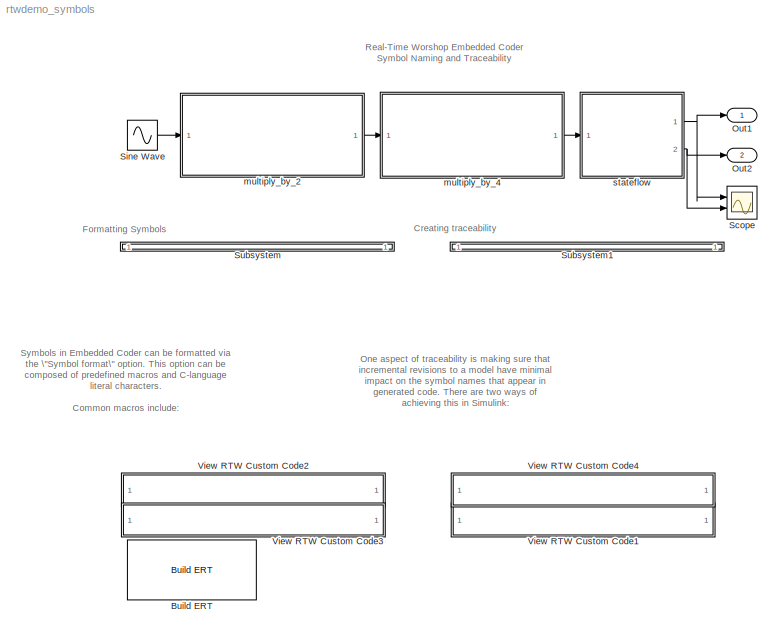
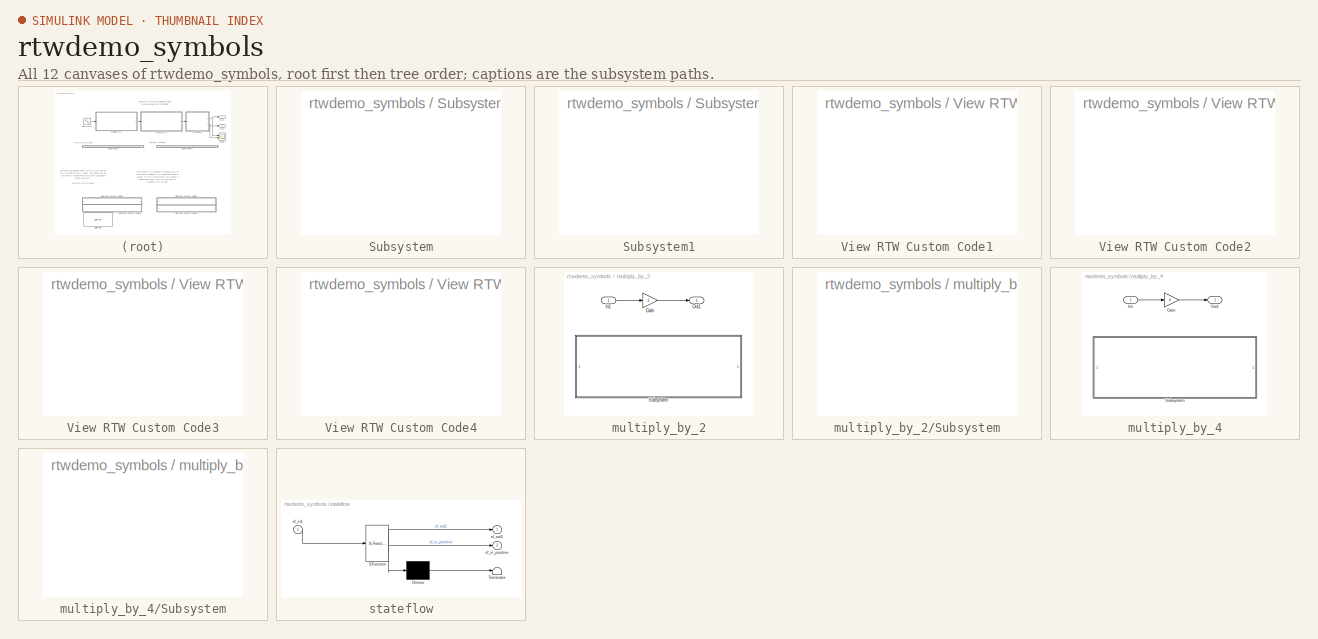
[diagram: thumbnail index - all 12 canvases of the model, root first then tree order]
MODEL rtwdemo_symbols
KIND model
BLOCK [Reference] Build ERT  REF=rtwdemowidgets/Build ERT
  Ports = []
  ShowPortLabels = on
  SourceBlock = rtwdemowidgets/Build ERT
  attrib_overrides = {'CustomSymbolStr'}
BLOCK [Outport] Out1
  BusOutputAsStruct = off
  IconDisplay = Port number
BLOCK [Outport] Out2
  BusOutputAsStruct = off
  IconDisplay = Port number
  Port = 2
BLOCK [Scope] Scope
  DataFormat = StructureWithTime
  NumInputPorts = 2
  Ports = [2]
  YMax = 500~1
  YMin = -500~0
BLOCK [Sin] Sine Wave
  Amplitude = 100
  Ports = [0, 1]
  SampleTime = .01
  SineType = Sample based
BLOCK [SubSystem] Subsystem
  MinAlgLoopOccurrences = off
  Ports = []
  PropExecContextAcrossSSBoundary = on
  RTWSystemCode = Auto
  TreatAsAtomicUnit = off
BLOCK [SubSystem] Subsystem1
  MinAlgLoopOccurrences = off
  Ports = []
  PropExecContextAcrossSSBoundary = on
  RTWSystemCode = Auto
  TreatAsAtomicUnit = off
BLOCK [SubSystem] View RTW Custom Code1
  MaskDisplay = patch(arrowXvec, arrowYvec);\ntext(textX, textY, 'Double-click to view traceability help');
  MaskIconFrame = off
  MaskIconOpaque = on
  MaskIconRotate = none
  MaskIconUnits = pixels
  MaskInitialization = pos    = get_param(gcb, 'Position');\nwidth  = pos(3) - pos(1);\nheight = pos(4) - pos(2);\n\n\n% Compute arrow coordinates\narrowW = width  / 20;\narrowH = height / 2.5;\narrowX = width  / 50;\narrowY = height / 3;\narrowXvec = [arrowX, arrowX, arrowX + arrowW];\narrowYvec = [arrowY, arrowY + arrowH, arrowY + arrowH / 2];\n\n% Compute text position\ntextXbuff = width / 30;\ntextX  = arrowX + arro...<+39ch>  <repeated x4 — deduplicated; at blocks: View RTW Custom Code1, View RTW Custom Code2, View RTW Custom Code3, View RTW Custom Code4>
  MinAlgLoopOccurrences = off
  OpenFcn = helpview([docroot '/mapfiles/ecoder_ug.map'], 'symbols_traceability')
  Ports = []
  PropExecContextAcrossSSBoundary = on
  RTWSystemCode = Auto
  TreatAsAtomicUnit = off
BLOCK [SubSystem] View RTW Custom Code2
  MaskDisplay = patch(arrowXvec, arrowYvec);\ntext(textX, textY, 'Double-click to view symbol format');
  MaskIconFrame = off
  MaskIconOpaque = on
  MaskIconRotate = none
  MaskIconUnits = pixels
  MinAlgLoopOccurrences = off
  OpenFcn = slCfgPrmDlg(bdroot,'Open');                                   \nslCfgPrmDlg(bdroot,'TurnToPage','Real-Time Workshop/Symbols');
  Ports = []
  PropExecContextAcrossSSBoundary = on
  RTWSystemCode = Auto
  TreatAsAtomicUnit = off
BLOCK [SubSystem] View RTW Custom Code3
  MaskDisplay = patch(arrowXvec, arrowYvec);\ntext(textX, textY, 'Double-click to view symbol format help');
  MaskIconFrame = off
  MaskIconOpaque = on
  MaskIconRotate = none
  MaskIconUnits = pixels
  MinAlgLoopOccurrences = off
  OpenFcn = helpview([docroot '/mapfiles/ecoder_ug.map'], 'symbols_pane')
  Ports = []
  PropExecContextAcrossSSBoundary = on
  RTWSystemCode = Auto
  TreatAsAtomicUnit = off
BLOCK [SubSystem] View RTW Custom Code4
  MaskDisplay = patch(arrowXvec, arrowYvec);\ntext(textX, textY, 'Double-click to view mangle settings');
  MaskIconFrame = off
  MaskIconOpaque = on
  MaskIconRotate = none
  MaskIconUnits = pixels
  MinAlgLoopOccurrences = off
  OpenFcn = slCfgPrmDlg(bdroot,'Open');                                   \nslCfgPrmDlg(bdroot,'TurnToPage','Real-Time Workshop/Symbols');
  Ports = []
  PropExecContextAcrossSSBoundary = on
  RTWSystemCode = Auto
  TreatAsAtomicUnit = off
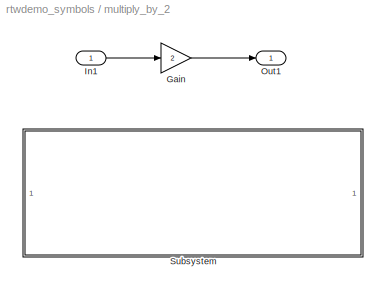
BLOCK [SubSystem] multiply_by_2
  MaskDisplay = fprintf('This atomic subsystem will\\ngenerate a function of the form\\n<model name>_<block name>\\nwhich expands to\\n%s_%s ',get_param(bdroot(gcbh),'name'),get_param(gcbh,'name'))
  MaskIconFrame = on
  MaskIconOpaque = on
  MaskIconRotate = none
  MaskIconUnits = autoscale
  MinAlgLoopOccurrences = off
  Ports = [1, 1]
  PropExecContextAcrossSSBoundary = on
  RTWSystemCode = Function
  TreatAsAtomicUnit = on
BLOCK [Gain] multiply_by_2/Gain
  Gain = 2
  OutDataTypeMode = Inherit via internal rule
  ParameterDataTypeMode = Inherit via internal rule
  SaturateOnIntegerOverflow = off
BLOCK [Inport] multiply_by_2/In1
  IconDisplay = Port number
  LatchInput = off
  Port = 1
BLOCK [Outport] multiply_by_2/Out1
  BusOutputAsStruct = off
  IconDisplay = Port number
BLOCK [SubSystem] multiply_by_2/Subsystem
  MaskDisplay = fprintf('The gain block in this subsystem will generate\\na symbol named \"Gain\".  This will collide with\\nthe symbol generated for the gain block in\\n\"rtwdemo_symbols/multiply_by_4/Gain\".\\n\\n (double-click to open colliding block)')
  MaskIconFrame = on
  MaskIconOpaque = on
  MaskIconRotate = none
  MaskIconUnits = autoscale
  MinAlgLoopOccurrences = off
  OpenFcn = open_system('rtwdemo_symbols/multiply_by_4')
  Ports = []
  PropExecContextAcrossSSBoundary = on
  RTWSystemCode = Auto
  TreatAsAtomicUnit = off
BLOCK [SubSystem] multiply_by_4
  MaskDisplay = fprintf('This atomic subsystem will\\ngenerate a function of the form\\n<model name>_<block name>\\nwhich expands to\\n%s_%s ',get_param(bdroot(gcbh),'name'),get_param(gcbh,'name'))
  MaskIconFrame = on
  MaskIconOpaque = on
  MaskIconRotate = none
  MaskIconUnits = autoscale
  MinAlgLoopOccurrences = off
  Ports = [1, 1]
  PropExecContextAcrossSSBoundary = on
  RTWFcnNameOpts = Use subsystem name
  RTWSystemCode = Function
  TreatAsAtomicUnit = on
BLOCK [Gain] multiply_by_4/Gain
  Gain = 4
  OutDataTypeMode = Inherit via internal rule
  ParameterDataTypeMode = Inherit via internal rule
  SaturateOnIntegerOverflow = off
BLOCK [Inport] multiply_by_4/In1
  IconDisplay = Port number
  LatchInput = off
  Port = 1
BLOCK [Outport] multiply_by_4/Out1
  BusOutputAsStruct = off
  IconDisplay = Port number
BLOCK [SubSystem] multiply_by_4/Subsystem
  MaskDisplay = fprintf('The gain block in this subsystem will generate\\na symbol named \"Gain\".  This will collide with\\nthe symbol generated for the gain block in\\n\"rtwdemo_symbols/multiply_by_2/Gain\".\\n\\n (double-click to open colliding block)')
  MaskIconFrame = on
  MaskIconOpaque = on
  MaskIconRotate = none
  MaskIconUnits = autoscale
  MinAlgLoopOccurrences = off
  OpenFcn = open_system('rtwdemo_symbols/multiply_by_2')
  Ports = []
  PropExecContextAcrossSSBoundary = on
  RTWSystemCode = Auto
  TreatAsAtomicUnit = off
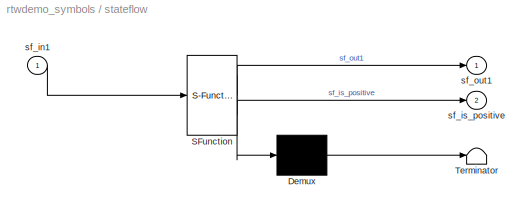
BLOCK [SubSystem] stateflow
  MaskDescription = Stateflow diagram
  MaskDisplay = plot(sf('Private','sfblk','xIcon'),sf('Private','sfblk','yIcon'));text(0.5,0,sf('Private', 'sfblk', 'tIcon'),'HorizontalAl','Center','VerticalAl','Bottom');
  MaskIconFrame = off
  MaskIconOpaque = off
  MaskIconRotate = none
  MaskIconUnits = autoscale
  MaskSelfModifiable = on
  MaskType = Stateflow
  MinAlgLoopOccurrences = off
  Ports = [1, 2]
  PropExecContextAcrossSSBoundary = on
  RTWSystemCode = Auto
  TreatAsAtomicUnit = off
BLOCK [Demux] stateflow/ Demux 
  Outputs = 1
  Ports = [1, 1]
BLOCK [S-Function] stateflow/ SFunction 
  FunctionName = sf_sfun
  PortCounts = [1 3]
  Ports = [1, 3]
  Tag = Stateflow S-Function rtwdemo_symbols 1
BLOCK [Terminator] stateflow/ Terminator 
BLOCK [Inport] stateflow/sf_in1
  IconDisplay = Port number
  LatchInput = off
  Port = 1
BLOCK [Outport] stateflow/sf_is_positive
  BusOutputAsStruct = off
  IconDisplay = Port number
  Port = 2
BLOCK [Outport] stateflow/sf_out1
  BusOutputAsStruct = off
  IconDisplay = Port number
ANNOTATION (root): Creating traceability
ANNOTATION (root): Formatting Symbols
ANNOTATION (root): One aspect of traceability is making sure that\nincremental revisions to a model have minimal\nimpact on the symbol names that appear in\ngenerated code. There are two ways of \nachieving this in Simulink:\n\n {\\bf1)} Name objects in Simulink (blocks, signals,\n states, etc) as uniquely as possible,\n {\\bf2)} Make use of name mangling when conflicts\n cannot be avoided.\n\nFor a complete discuss...<+89ch>
ANNOTATION (root): Real-Time Worshop Embedded Coder\nSymbol Naming and Traceability
ANNOTATION (root): Symbols in Embedded Coder can be formatted via\nthe \"Symbol format\" option. This option can be \ncomposed of predefined macros and C-language\nliteral characters.\n\nCommon macros include:\n {\\bf$R} = Root model name.\n {\\bf$N} = Name of object (block, signal, state, etc).\n {\\bf$M} = Mangle used to uniquify symbol.\n\nFor a complete list of macros and the rules by which\nthey are expanded, s...<+38ch>
LINE Sine Wave:1 -> multiply_by_2:1
LINE multiply_by_2/Gain:1 -> multiply_by_2/Out1:1
LINE multiply_by_2/In1:1 -> multiply_by_2/Gain:1
LINE multiply_by_2:1 -> multiply_by_4:1
LINE multiply_by_4/Gain:1 -> multiply_by_4/Out1:1
LINE multiply_by_4/In1:1 -> multiply_by_4/Gain:1
LINE multiply_by_4:1 -> stateflow:1
LINE stateflow/ Demux :1 -> stateflow/ Terminator :1
LINE stateflow/ SFunction :1 -> stateflow/ Demux :1
LINE stateflow/ SFunction :2 -> stateflow/sf_out1:1
LINE stateflow/ SFunction :3 -> stateflow/sf_is_positive:1
LINE stateflow/sf_in1:1 -> stateflow/ SFunction :1
NET stateflow:1 -> Out1:1, Scope:1
NET stateflow:2 -> Out2:1, Scope:2
note: NET lines group one-source signal fan-out (src -> all destinations, sorted); 1:1 wires keep LINE
CHART stateflow states=4 transitions=7
  STATE_LABEL 'positive_state\\nentry:\\nsf_is_positive = 1;\\nsf_out1 = sf_in1;'
  STATE_LABEL 'negative_state\\nentry:\\nsf_is_positive = 0;\\nsf_out1 = sf_in1;'
  STATE_LABEL 'result = sf_is_positive(val)'
  STATE_LABEL 'Note:\\nFor demonstration purposes, inlining has been\\nturned off for this graphical function.  As a result,\\na seperate c-code function will be generated that\\nrespects the Real-Time Workshop naming rules.'
